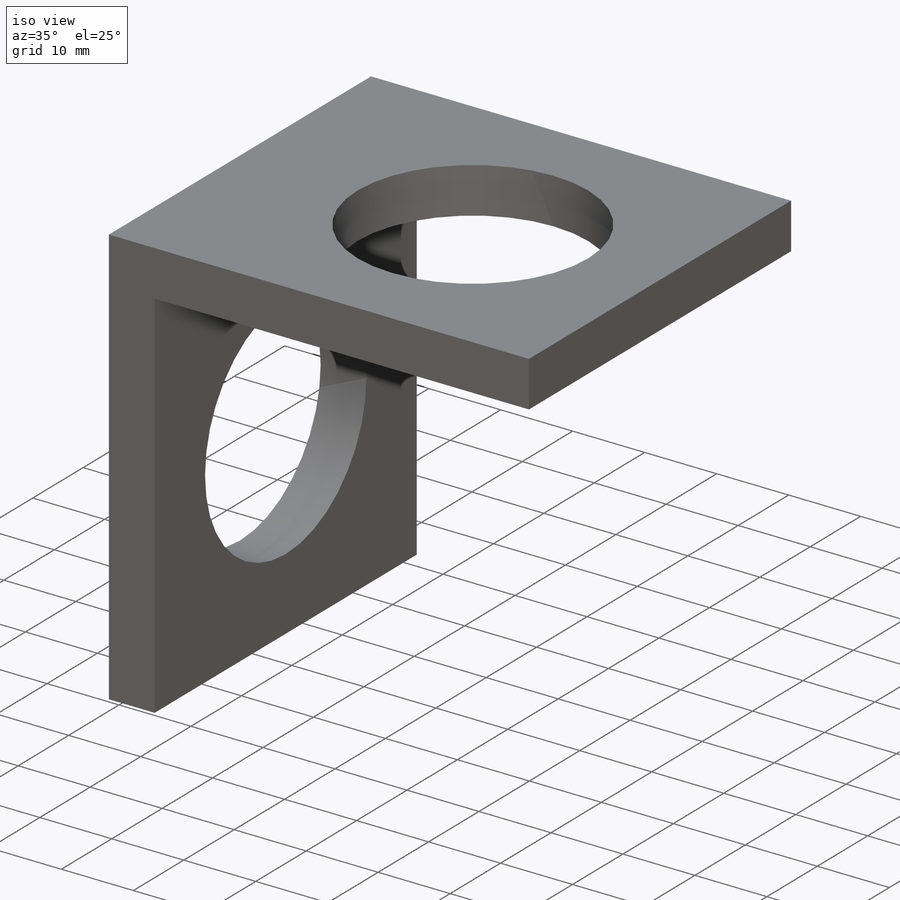
[diagram: iso view]
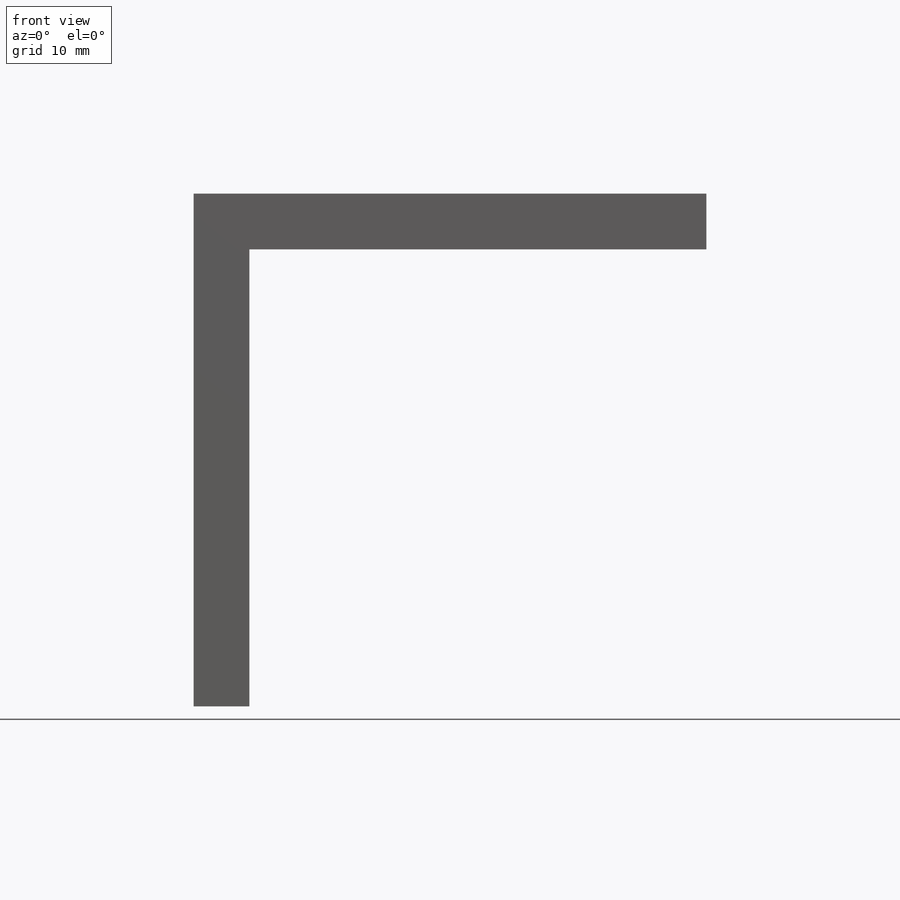
[diagram: front view]
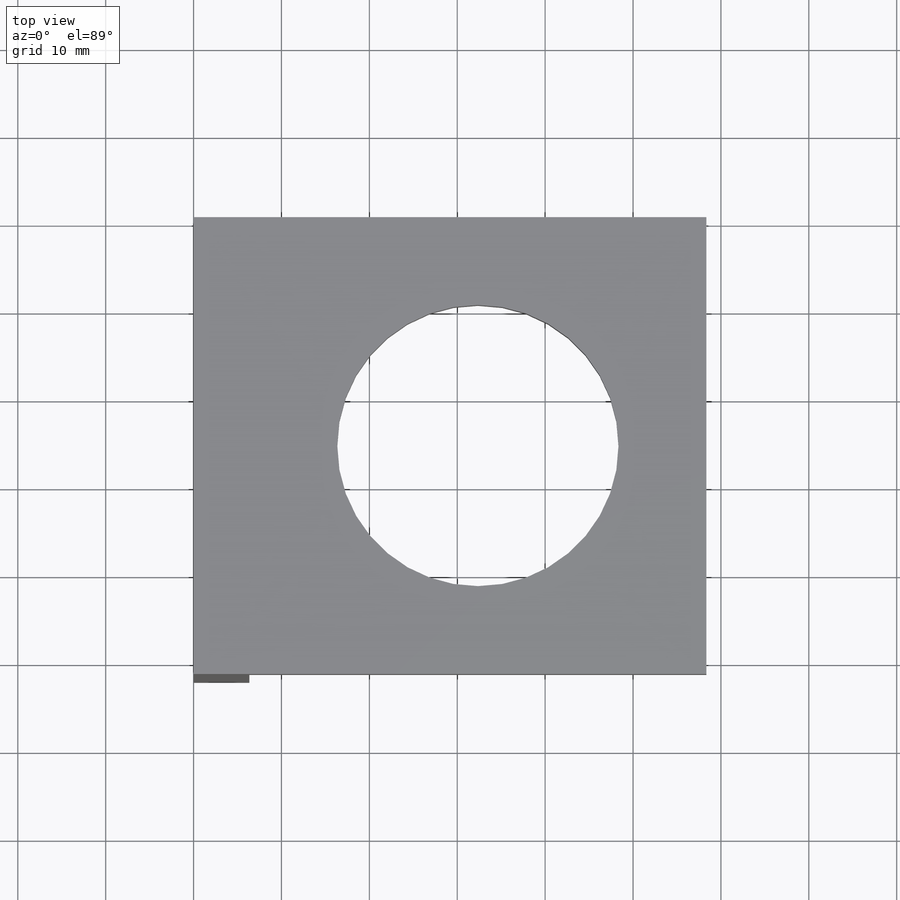
[diagram: top view]
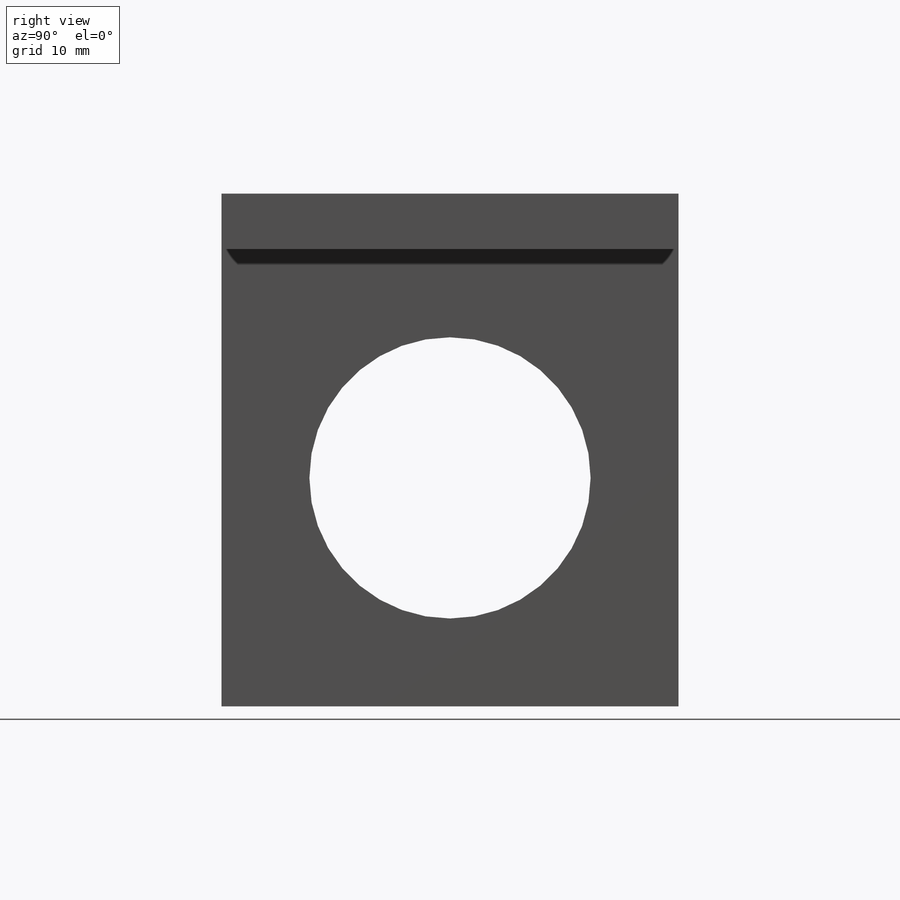
[diagram: right view]
SOLIDWORKS PART (.sldprt)
format: sldprt  version: not decoded by parser v0  size: 189,952 bytes
history: native  units: mm
features: sketch x3, cut_extrude x2, material x1, extrude x1 (+12 scaffold rows collapsed)
feature tree (19):
  scaffold x12  (default folders/planes/origin — collapsed)
  material  "Material <not specified>"
  sketch  "Sketch1"  dims[D1=6.35mm D2=6.35mm D3=52.0mm D4=52.0mm]
  extrude  "Boss-Extrude1"  Depth=52mm
  sketch  "Sketch2"  dims[D1=32.0mm]
  cut_extrude  "Cut-Extrude1"  Depth=52mm
  sketch  "Sketch3"  dims[D1=~18.400457mm]
  cut_extrude  "Cut-Extrude2"  Depth=52mm
decode coverage: 6 of 6 modeling features carry decoded parameters
note: ~ marks probable driven/reference dimensions
note: suppression state not decoded; provenance and decode notes live in map.json
